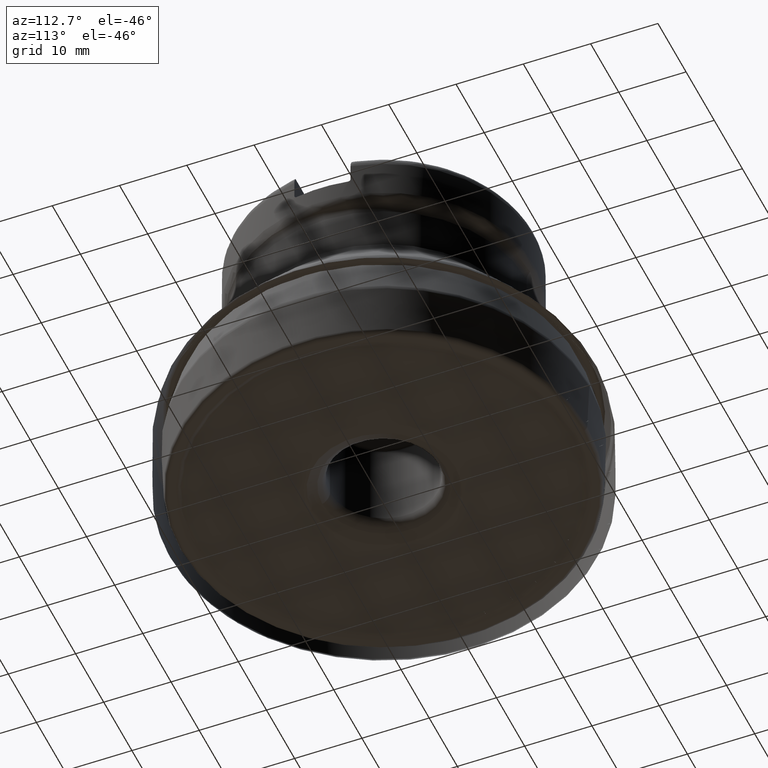
[diagram: clean part render]
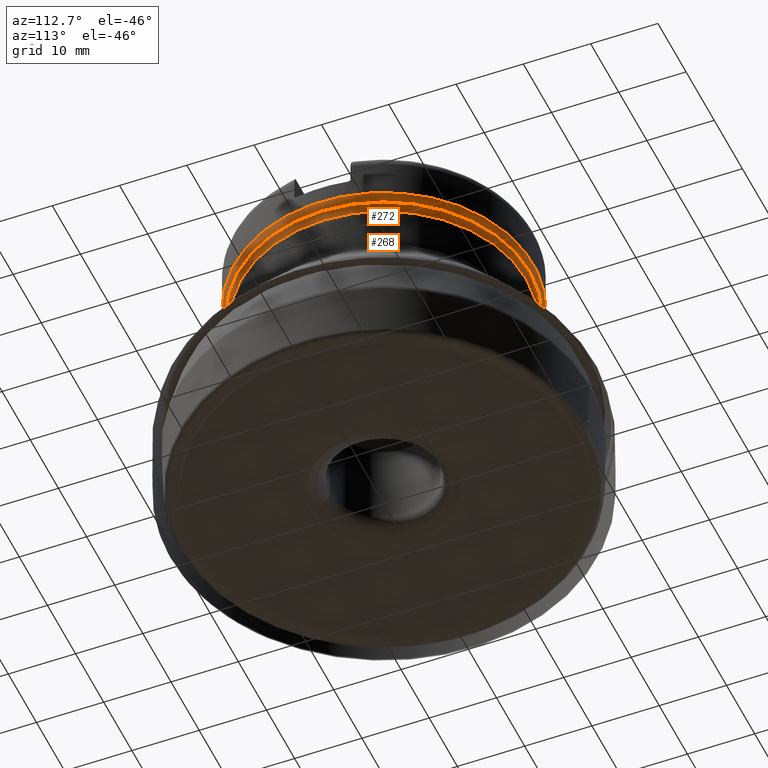
[diagram: same view with one multi-face feature highlighted, each face labeled with its STEP entity id]
A machine part, auxiliary view. The highlighted faces form ONE feature: a constant-radius fillet chain: 2 tangent blend faces with common blend radius 2 mm. The faces share edges in the B-rep.
Their STEP definitions:
[1] entity #268 (Torus):
#194=TOROIDAL_SURFACE('',#1245,23.225,2.);
#268=ADVANCED_FACE('',(#412,#413),#194,.F.);
#412=FACE_BOUND('',#536,.T.);
#413=FACE_BOUND('',#537,.T.);
#536=EDGE_LOOP('',(#768));
#537=EDGE_LOOP('',(#769));
#768=ORIENTED_EDGE('',*,*,#1011,.T.);
#769=ORIENTED_EDGE('',*,*,#948,.F.);
#850=VERTEX_POINT('',#2004);
#895=VERTEX_POINT('',#2260);
#948=EDGE_CURVE('',#850,#850,#1044,.T.);
#1011=EDGE_CURVE('',#895,#895,#1075,.T.);
#1044=CIRCLE('',#1171,21.225);
#1075=CIRCLE('',#1244,21.7249999999999);
#1171=AXIS2_PLACEMENT_3D('',#2003,#1309,#1310);
#1244=AXIS2_PLACEMENT_3D('',#2259,#1471,#1472);
#1245=AXIS2_PLACEMENT_3D('',#2261,#1473,#1474);
#1309=DIRECTION('',(0.,-1.17145536458252E-15,-1.));
#1310=DIRECTION('',(0.,1.,-1.30768318565978E-15));
#1471=DIRECTION('',(0.,-1.17145536458252E-15,-1.));
#1472=DIRECTION('',(0.,1.,-1.27758690981031E-15));
#1473=DIRECTION('',(0.,-1.17145536458252E-15,-1.));
#1474=DIRECTION('',(0.,1.,-1.10032014333514E-15));
#2003=CARTESIAN_POINT('',(0.,4.02061906656261E-14,34.3215728752538));
#2004=CARTESIAN_POINT('',(0.,21.225,34.3215728752538));
#2259=CARTESIAN_POINT('',(0.,4.17558804489751E-14,35.6444485307862));
#2260=CARTESIAN_POINT('',(0.,21.725,35.6444485307861));
#2261=CARTESIAN_POINT('',(0.,4.02061906656261E-14,34.3215728752538));
[2] entity #272 (Torus):
#198=TOROIDAL_SURFACE('',#1250,20.225,2.);
#272=ADVANCED_FACE('',(#420,#421),#198,.T.);
#420=FACE_BOUND('',#544,.T.);
#421=FACE_BOUND('',#545,.T.);
#544=EDGE_LOOP('',(#776));
#545=EDGE_LOOP('',(#777));
#776=ORIENTED_EDGE('',*,*,#918,.F.);
#777=ORIENTED_EDGE('',*,*,#1011,.F.);
#824=VERTEX_POINT('',#1823);
#895=VERTEX_POINT('',#2260);
#918=EDGE_CURVE('',#824,#824,#1034,.T.);
#1011=EDGE_CURVE('',#895,#895,#1075,.T.);
#1034=CIRCLE('',#1156,22.225);
#1075=CIRCLE('',#1244,21.7249999999999);
#1156=AXIS2_PLACEMENT_3D('',#1822,#1271,#1272);
#1244=AXIS2_PLACEMENT_3D('',#2259,#1471,#1472);
#1250=AXIS2_PLACEMENT_3D('',#2267,#1483,#1484);
#1271=DIRECTION('',(0.,1.17145536458252E-15,1.));
#1272=DIRECTION('',(0.,-1.,1.24884479710366E-15));
#1471=DIRECTION('',(0.,-1.17145536458252E-15,-1.));
#1472=DIRECTION('',(0.,1.,-1.27758690981031E-15));
#1483=DIRECTION('',(0.,1.17145536458252E-15,1.));
#1484=DIRECTION('',(0.,-1.,1.24884479710366E-15));
#1822=CARTESIAN_POINT('',(0.,4.3305570232324E-14,36.9673241863184));
#1823=CARTESIAN_POINT('',(0.,-22.225,36.9673241863184));
#2259=CARTESIAN_POINT('',(0.,4.17558804489751E-14,35.6444485307862));
#2260=CARTESIAN_POINT('',(0.,21.725,35.6444485307861));
#2267=CARTESIAN_POINT('',(0.,4.3305570232324E-14,36.9673241863184));